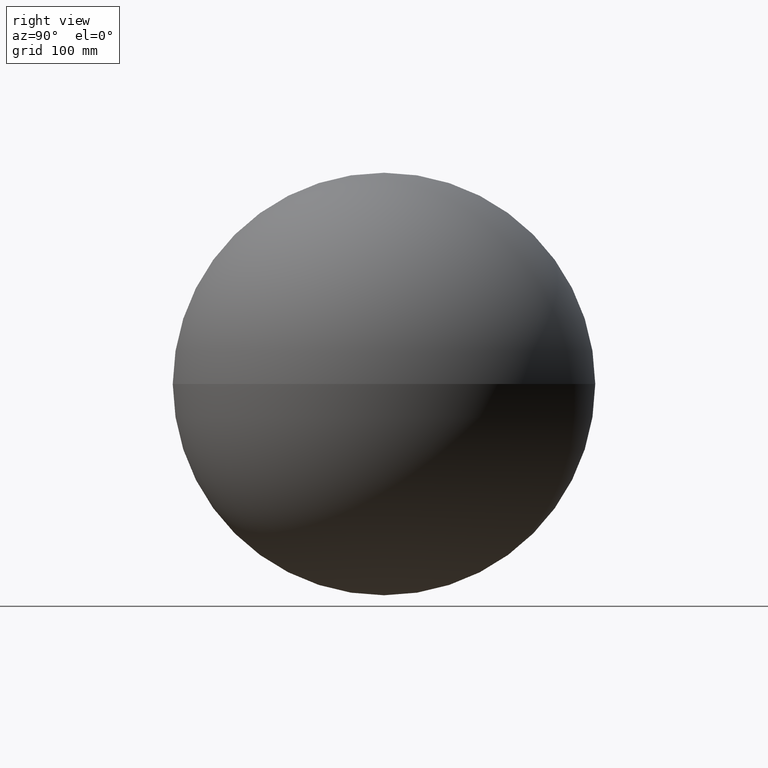
[diagram: clean part render]
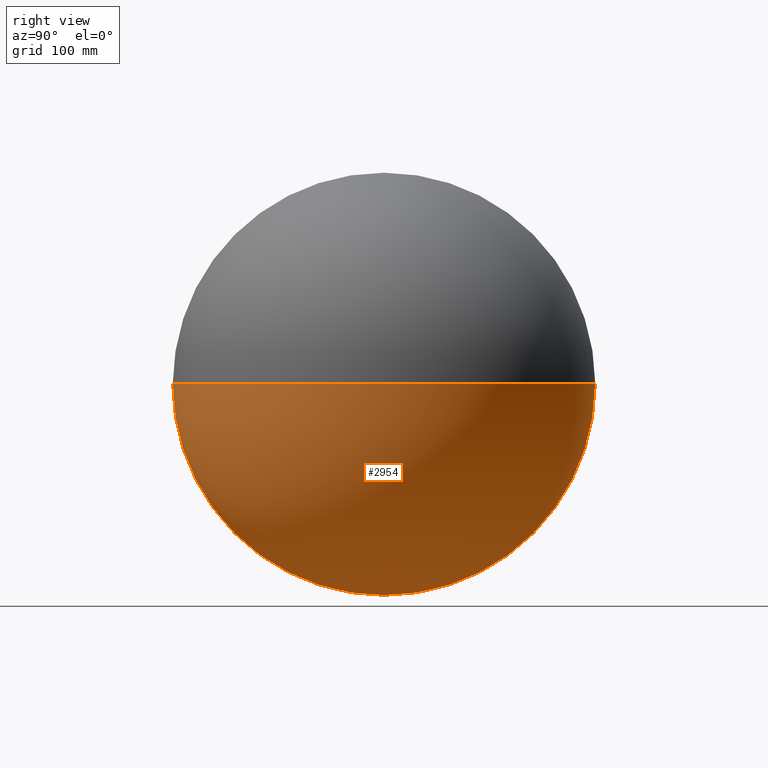
[diagram: same view with one face highlighted and labeled with its STEP entity id]
A machine part, right view. The second image highlights one B-rep face of the part: STEP entity #2954.
In plain terms, the highlighted spherical surface has radius 250 mm.
Its self-contained STEP definition (entity closure, byte-faithful):
#43 = DIRECTION ( 'NONE',  ( -1.224646799147353200E-016, 1.499759782661869700E-032, 1.000000000000000000 ) ) ;
#148 = EDGE_CURVE ( 'NONE', #2133, #8607, #3288, .T. ) ;
#588 = FACE_OUTER_BOUND ( 'NONE', #4151, .T. ) ;
#706 = CARTESIAN_POINT ( 'NONE',  ( 0.0000000000000000000, 0.0000000000000000000, 0.0000000000000000000 ) ) ;
#820 = DIRECTION ( 'NONE',  ( 0.0000000000000000000, 0.0000000000000000000, 1.000000000000000000 ) ) ;
#1320 = ORIENTED_EDGE ( 'NONE', *, *, #148, .T. ) ;
#1941 = AXIS2_PLACEMENT_3D ( 'NONE', #5818, #43, #2208 ) ;
#2133 = VERTEX_POINT ( 'NONE', #5544 ) ;
#2208 = DIRECTION ( 'NONE',  ( 1.000000000000000000, 0.0000000000000000000, 1.224646799147353200E-016 ) ) ;
#2954 = ADVANCED_FACE ( 'NONE', ( #588 ), #3330, .T. ) ;
#2965 = AXIS2_PLACEMENT_3D ( 'NONE', #6510, #820, #3702 ) ;
#3288 = CIRCLE ( 'NONE', #6108, 249.9999999999999700 ) ;
#3330 = SPHERICAL_SURFACE ( 'NONE', #2965, 249.9999999999999700 ) ;
#3702 = DIRECTION ( 'NONE',  ( -1.000000000000000000, 1.224646799147363100E-016, 0.0000000000000000000 ) ) ;
#4151 = EDGE_LOOP ( 'NONE', ( #9445, #1320 ) ) ;
#5022 = DIRECTION ( 'NONE',  ( -0.0000000000000000000, 0.0000000000000000000, -1.000000000000000000 ) ) ;
#5544 = CARTESIAN_POINT ( 'NONE',  ( -4.592425496802598300E-014, -249.9999999999999700, 0.0000000000000000000 ) ) ;
#5812 = DIRECTION ( 'NONE',  ( -1.000000000000000000, 0.0000000000000000000, 0.0000000000000000000 ) ) ;
#5818 = CARTESIAN_POINT ( 'NONE',  ( 0.0000000000000000000, 0.0000000000000000000, 0.0000000000000000000 ) ) ;
#6108 = AXIS2_PLACEMENT_3D ( 'NONE', #706, #5022, #5812 ) ;
#6510 = CARTESIAN_POINT ( 'NONE',  ( 0.0000000000000000000, 0.0000000000000000000, 0.0000000000000000000 ) ) ;
#7475 = CARTESIAN_POINT ( 'NONE',  ( 1.530808498934215900E-014, 249.9999999999999700, 0.0000000000000000000 ) ) ;
#8607 = VERTEX_POINT ( 'NONE', #7475 ) ;
#8875 = EDGE_CURVE ( 'NONE', #2133, #8607, #9514, .T. ) ;
#9445 = ORIENTED_EDGE ( 'NONE', *, *, #8875, .F. ) ;
#9514 = CIRCLE ( 'NONE', #1941, 249.9999999999999700 ) ;